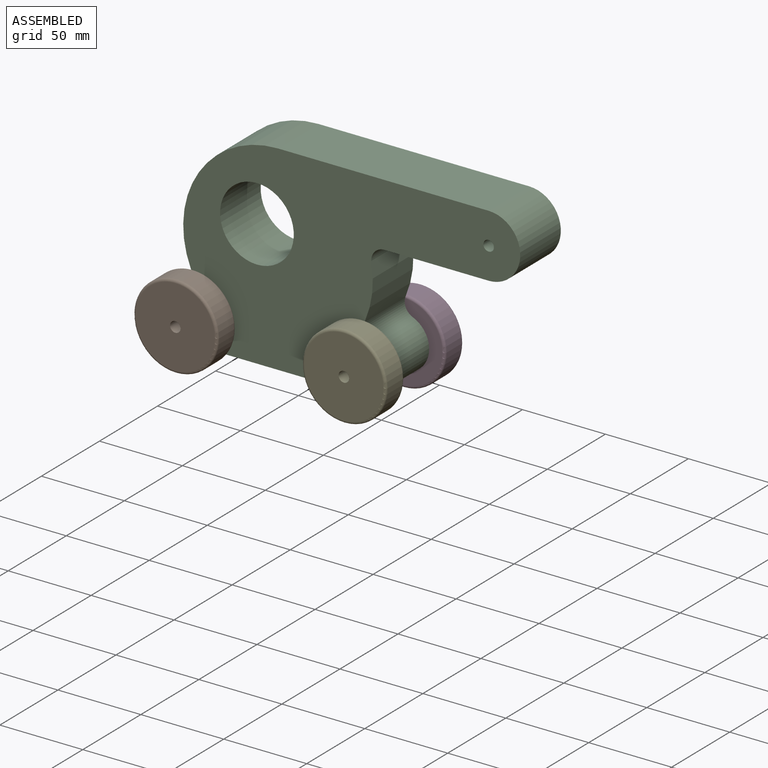
[diagram: assembled view]
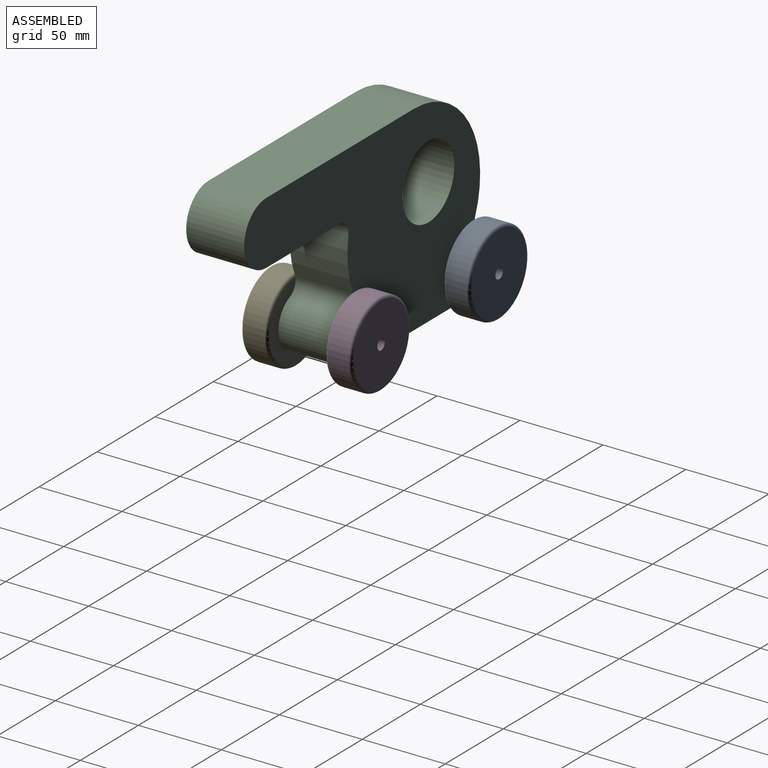
[diagram: assembled view, second angle]
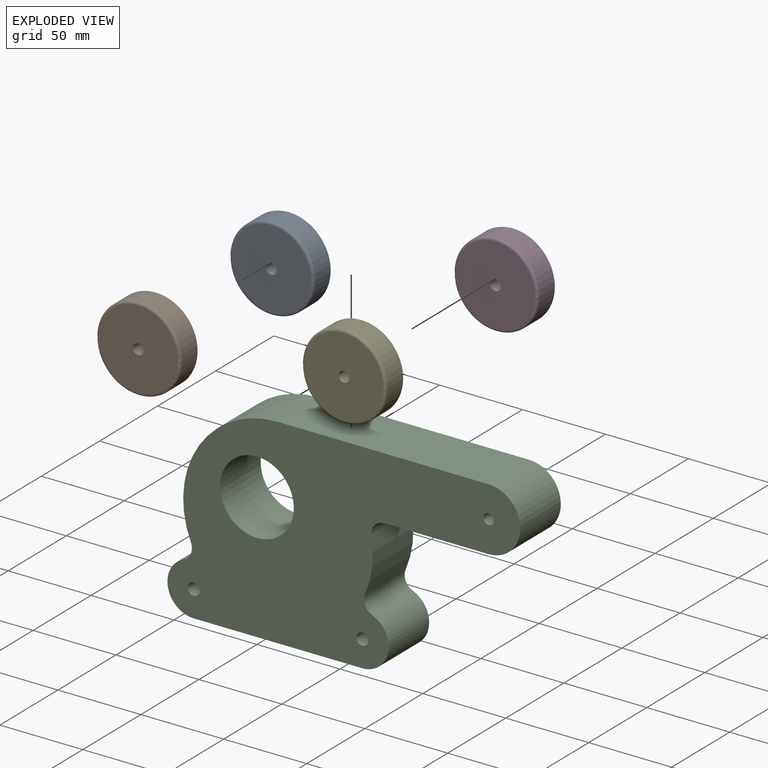
[diagram: exploded view]
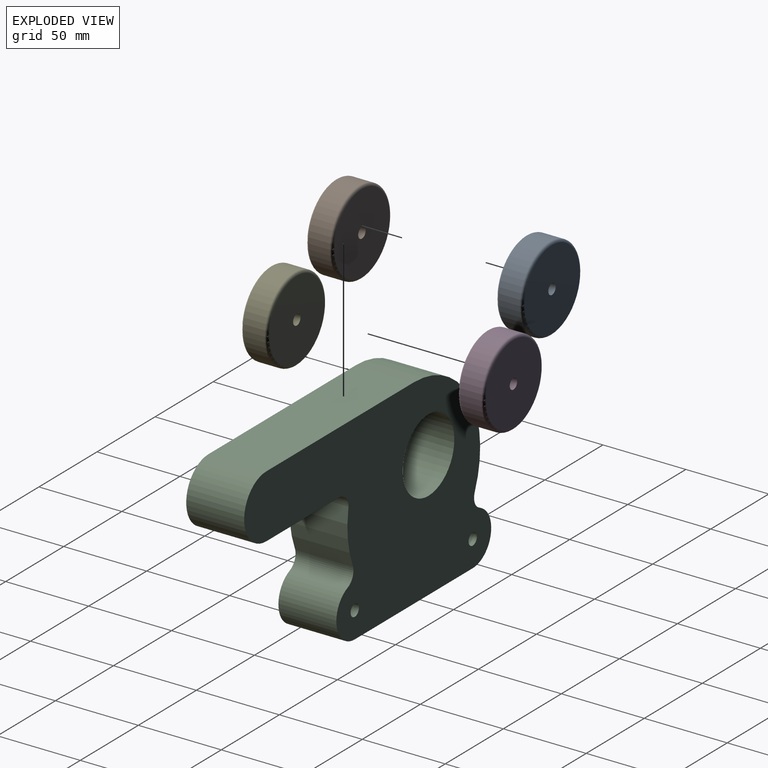
[diagram: exploded view, second angle]
ASSEMBLY  parts=5 mates=4
PART A: 6 faces, bbox 55x15.9x55 mm
  f0: cylinder r=3.17mm len=15.88mm, axis (0,1,0), area 316.7mm2, adj f2,f3
  f1: cylinder r=25.4mm len=50.8mm, axis (0,1,0), area 2026.8mm2, adj f4,f5
  f2: plane 47.63x47.63mm, normal (0,-1,0), area 1749.7mm2, adj f0,f5
  f3: plane 47.63x47.63mm, normal (0,1,0), area 1749.7mm2, adj f0,f4
  f4: torus R=23.81mm, axis (0,-1,0), area 388.9mm2, adj f1,f3
  f5: torus R=23.81mm, axis (0,-1,0), area 388.9mm2, adj f1,f2
PART B: same geometry as A
PART C: 18 faces, bbox 212.7x34.9x120.7 mm
  f0: cylinder r=57.15mm len=79.63mm, axis (0,1,0), area 3942mm2, adj f1,f12,f14,f15
  f1: cylinder r=7.94mm len=34.93mm, axis (0,1,0), area 439.5mm2, adj f0,f2,f14,f15
  f2: cylinder r=15.88mm len=34.93mm, axis (0,1,0), area 1525.8mm2, adj f1,f3,f14,f15
  f3: plane 101.6x34.93mm, normal (0,0,-1), area 3548.4mm2, adj f2,f4,f14,f15
  f4: cylinder r=15.88mm len=34.93mm, axis (0,1,0), area 1525.8mm2, adj f3,f5,f14,f15
  f5: cylinder r=7.94mm len=34.93mm, axis (0,1,0), area 439.5mm2, adj f4,f6,f14,f15
  f6: cylinder r=57.15mm len=34.93mm, axis (0,1,0), area 1149.2mm2, adj f5,f7,f14,f15
  f7: cylinder r=7.94mm len=34.93mm, axis (0,1,0), area 483mm2, adj f6,f8,f14,f15
  f8: plane 62.87x34.93mm, normal (0,0,-1), area 2195.7mm2, adj f7,f9,f14,f15
  f9: cylinder r=19.05mm len=38.1mm, axis (0,1,0), area 2090.2mm2, adj f8,f12,f14,f15
  f10: cylinder r=3.57mm len=34.93mm, axis (0,1,0), area 783.8mm2, adj f14,f15
  f11: cylinder r=22.23mm len=44.45mm, axis (0,1,0), area 4877.1mm2, adj f14,f15
  f12: plane 127x34.93mm, normal (0,0,1), area 4435.5mm2, adj f0,f9,f14,f15
  f13: cylinder r=3.57mm len=34.93mm, axis (0,1,0), area 783.8mm2, adj f14,f15
  f14: plane 212.73x120.65mm, normal (0,-1,0), area 14896.8mm2, adj f0,f1,f2,f3,f4,f5,f6,f7
  f15: plane 212.73x120.65mm, normal (0,1,0), area 14928.4mm2, adj f0,f1,f2,f3,f4,f5,f6,f7
  f16: cone r=0mm half-angle=59deg, axis (0,-1,0), area 36.9mm2, adj f17
  f17: cylinder r=3.17mm len=12.7mm, axis (0,-1,0), area 253.4mm2, adj f14,f16
PART D: same geometry as A
PART E: same geometry as A
PLACE A t=(-38.1,50.8,-60.32)mm
PLACE B t=(-38.1,0,-60.32)mm
PLACE C t=(12.7,34.93,-76.2)mm
PLACE D t=(63.5,50.8,-60.32)mm
PLACE E t=(63.5,0,-60.32)mm
MATE revolute D.f0 <-> C.f4  axis (0,-1,0) through (63.5,34.93,-60.32)mm
MATE revolute E.f0 <-> C.f4  axis (0,1,0) through (63.5,0,-60.32)mm
MATE revolute B.f1 <-> C.f2  axis (0,1,0) through (-38.1,0,-60.32)mm
MATE revolute A.f0 <-> C.f2  axis (0,-1,0) through (-38.1,34.93,-60.32)mm
